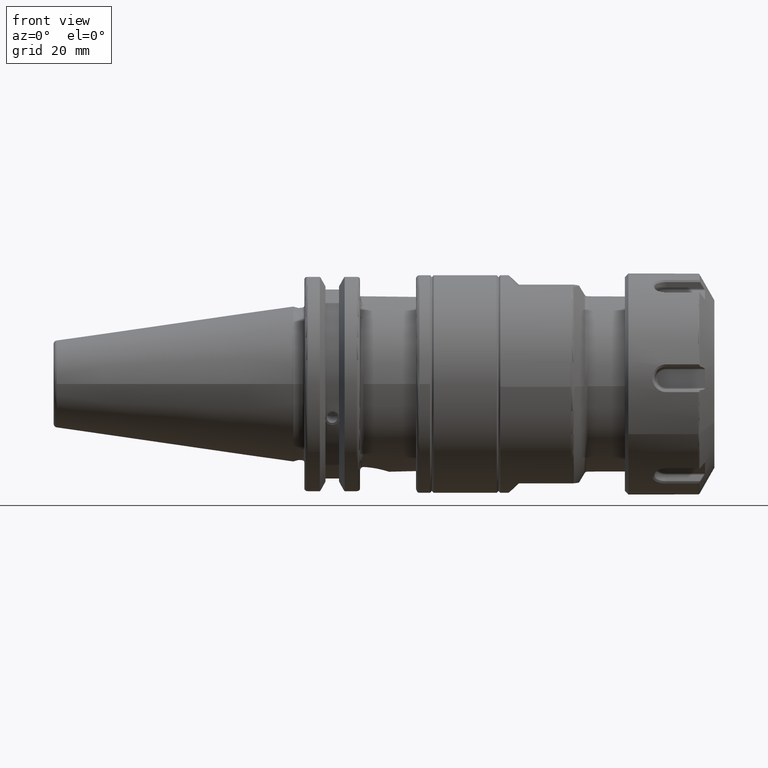
[diagram: clean part render]
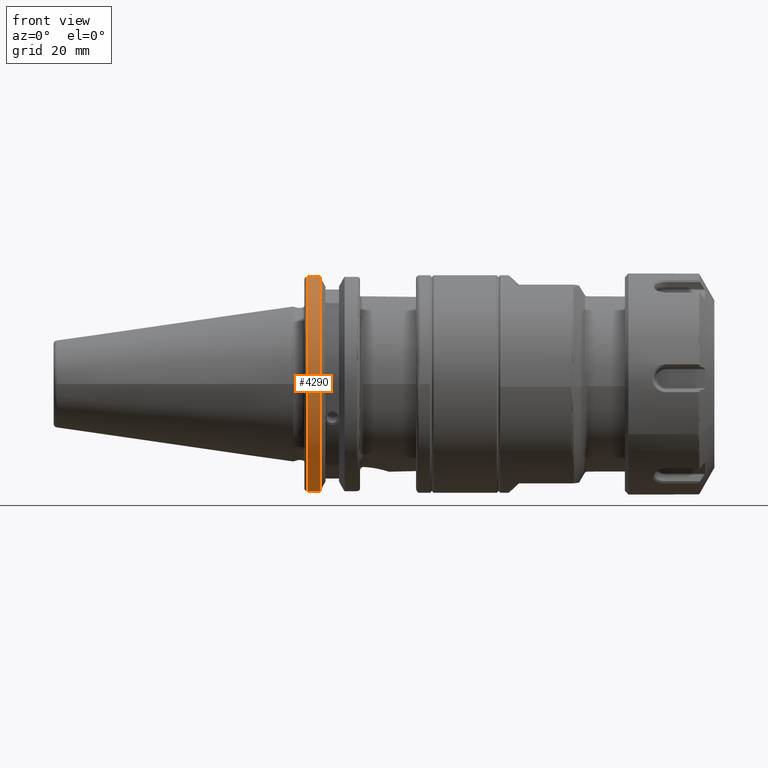
[diagram: same view with one face highlighted and labeled with its STEP entity id]
A machine part, front view. The second image highlights one B-rep face of the part: STEP entity #4290.
In plain terms, the highlighted cylindrical surface (partial cylindrical patch) has radius 31.75 mm, axis along (1, 0, 0).
Its self-contained STEP definition (entity closure, byte-faithful):
#483=FACE_OUTER_BOUND('',#768,.T.);
#768=EDGE_LOOP('',(#3266,#3267,#3268,#3269));
#1055=CIRCLE('',#4776,31.75);
#1056=CIRCLE('',#4779,31.75);
#1308=LINE('',#7302,#1549);
#1309=LINE('',#7308,#1550);
#1549=VECTOR('',#5573,10.);
#1550=VECTOR('',#5576,10.);
#1973=VERTEX_POINT('',#7281);
#1974=VERTEX_POINT('',#7290);
#1975=VERTEX_POINT('',#7301);
#1976=VERTEX_POINT('',#7307);
#2455=EDGE_CURVE('',#1973,#1974,#1055,.T.);
#2457=EDGE_CURVE('',#1974,#1975,#1308,.T.);
#2459=EDGE_CURVE('',#1976,#1973,#1309,.T.);
#2460=EDGE_CURVE('',#1975,#1976,#1056,.T.);
#3266=ORIENTED_EDGE('',*,*,#2455,.F.);
#3267=ORIENTED_EDGE('',*,*,#2459,.F.);
#3268=ORIENTED_EDGE('',*,*,#2460,.F.);
#3269=ORIENTED_EDGE('',*,*,#2457,.F.);
#4167=CYLINDRICAL_SURFACE('',#4778,31.75);
#4290=ADVANCED_FACE('',(#483),#4167,.T.);
#4776=AXIS2_PLACEMENT_3D('',#7291,#5569,#5570);
#4778=AXIS2_PLACEMENT_3D('',#7306,#5574,#5575);
#4779=AXIS2_PLACEMENT_3D('',#7309,#5577,#5578);
#5569=DIRECTION('center_axis',(-1.,0.,0.));
#5570=DIRECTION('ref_axis',(0.,-1.,1.60812264967664E-16));
#5573=DIRECTION('',(1.,0.,0.));
#5574=DIRECTION('center_axis',(1.,0.,0.));
#5575=DIRECTION('ref_axis',(0.,-1.,1.22464679914735E-16));
#5576=DIRECTION('',(-1.,0.,0.));
#5577=DIRECTION('center_axis',(1.,0.,0.));
#5578=DIRECTION('ref_axis',(0.,0.,-1.));
#7281=CARTESIAN_POINT('',(4.175,-8.67204822802685,-30.5427254764662));
#7290=CARTESIAN_POINT('',(4.175,-8.67204822802685,30.5427254764662));
#7291=CARTESIAN_POINT('Origin',(4.175,0.,0.));
#7301=CARTESIAN_POINT('',(7.60793323092436,-8.67204822802685,30.5427254764662));
#7302=CARTESIAN_POINT('',(5.39146661546218,-8.67204822802685,30.5427254764662));
#7306=CARTESIAN_POINT('Origin',(5.39146661546218,0.,0.));
#7307=CARTESIAN_POINT('',(7.60793323092436,-8.67204822802685,-30.5427254764662));
#7308=CARTESIAN_POINT('',(5.39146661546218,-8.67204822802685,-30.5427254764662));
#7309=CARTESIAN_POINT('Origin',(7.60793323092436,0.,0.));